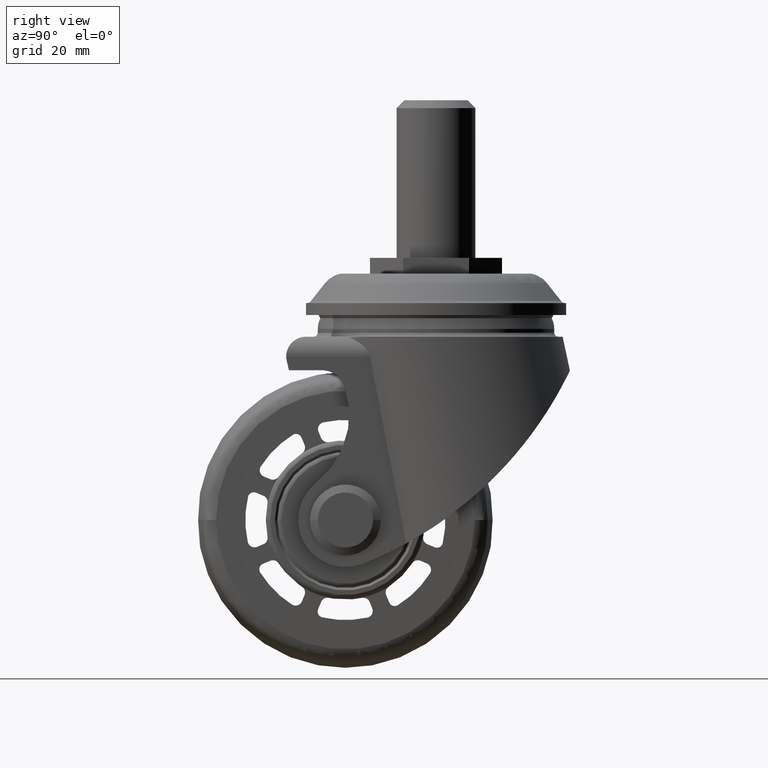
[diagram: clean part render]
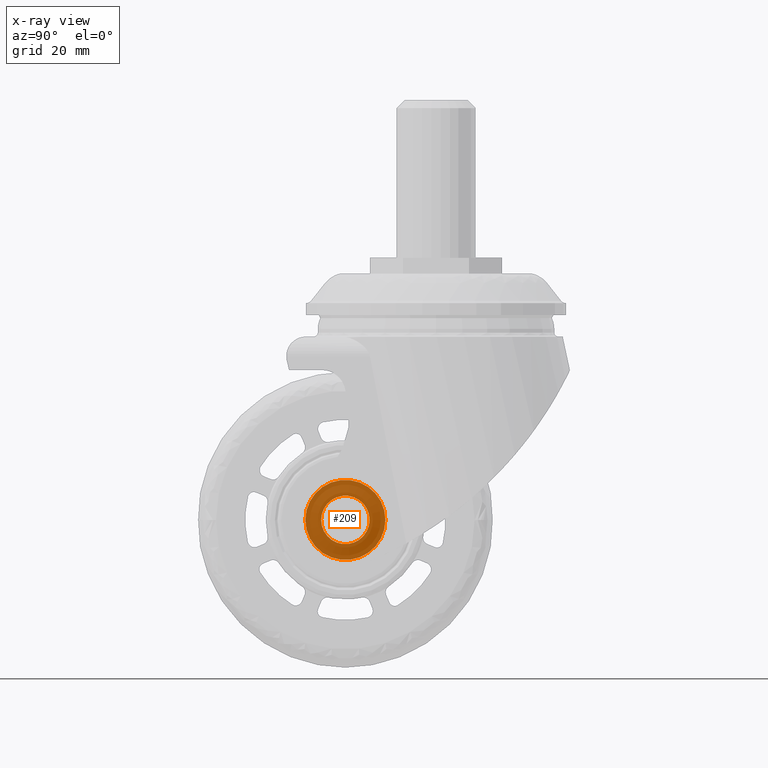
[diagram: x-ray — body ghosted, one internal face saturated and labeled with its STEP entity id]
A machine part, right view, then the same camera in x-ray: the body is ghosted and one INTERNAL B-rep face — a face not visible from any outside direction — is saturated and labeled: STEP entity #209.
In plain terms, the highlighted planar face has unit normal (-1, 0, 0).
Its self-contained STEP definition (entity closure, byte-faithful):
#209=ADVANCED_FACE('',(#1302,#1303),#1301,.T.);
#1301=PLANE('',#3249);
#1302=FACE_OUTER_BOUND('',#3250,.T.);
#1303=FACE_BOUND('',#3251,.T.);
#3246=CARTESIAN_POINT('',(-2.25000000000E+01,-2.11043736363E+01,-1.32000004500E+01));
#3247=DIRECTION('',(-1.00000000000E+00,0.00000000000E+00,0.00000000000E+00));
#3248=DIRECTION('',(0.00000000000E+00,0.00000000000E+00,1.00000000000E+00));
#3249=AXIS2_PLACEMENT_3D('',#3246,#3247,#3248);
#3250=EDGE_LOOP('',(#4624,#4625));
#3251=EDGE_LOOP('',(#4626,#4627));
#4624=ORIENTED_EDGE('',*,*,#5463,.F.);
#4625=ORIENTED_EDGE('',*,*,#5464,.F.);
#4626=ORIENTED_EDGE('',*,*,#5465,.T.);
#4627=ORIENTED_EDGE('',*,*,#5466,.T.);
#5463=EDGE_CURVE('',#7271,#7272,#7273,.T.);
#5464=EDGE_CURVE('',#7272,#7271,#7279,.T.);
#5465=EDGE_CURVE('',#7285,#7286,#7287,.T.);
#5466=EDGE_CURVE('',#7286,#7285,#7293,.T.);
#7271=VERTEX_POINT('',#10539);
#7272=VERTEX_POINT('',#10540);
#7273=CIRCLE('',#10544,1.01538465000E+01);
#7279=CIRCLE('',#10548,1.01538465000E+01);
#7285=VERTEX_POINT('',#10549);
#7286=VERTEX_POINT('',#10550);
#7287=CIRCLE('',#10554,6.15384615385E+00);
#7293=CIRCLE('',#10558,6.15384615385E+00);
#10539=CARTESIAN_POINT('',(-2.25000000000E+01,5.92118946467E-16,1.01538465000E+01));
#10540=CARTESIAN_POINT('',(-2.25000000000E+01,0.00000000000E+00,-1.01538465000E+01));
#10541=CARTESIAN_POINT('',(-2.25000000000E+01,0.00000000000E+00,0.00000000000E+00));
#10542=DIRECTION('',(1.00000000000E+00,0.00000000000E+00,0.00000000000E+00));
#10543=DIRECTION('',(0.00000000000E+00,-1.22460635382E-16,-1.00000000000E+00));
#10544=AXIS2_PLACEMENT_3D('',#10541,#10542,#10543);
#10545=CARTESIAN_POINT('',(-2.25000000000E+01,0.00000000000E+00,0.00000000000E+00));
#10546=DIRECTION('',(1.00000000000E+00,0.00000000000E+00,0.00000000000E+00));
#10547=DIRECTION('',(0.00000000000E+00,-1.22460635382E-16,-1.00000000000E+00));
#10548=AXIS2_PLACEMENT_3D('',#10545,#10546,#10547);
#10549=CARTESIAN_POINT('',(-2.25000000000E+01,0.00000000000E+00,-6.15384615385E+00));
#10550=CARTESIAN_POINT('',(-2.25000000000E+01,-2.96059473233E-16,6.15384615385E+00));
#10551=CARTESIAN_POINT('',(-2.25000000000E+01,0.00000000000E+00,0.00000000000E+00));
#10552=DIRECTION('',(1.00000000000E+00,0.00000000000E+00,0.00000000000E+00));
#10553=DIRECTION('',(0.00000000000E+00,-1.22460635382E-16,-1.00000000000E+00));
#10554=AXIS2_PLACEMENT_3D('',#10551,#10552,#10553);
#10555=CARTESIAN_POINT('',(-2.25000000000E+01,0.00000000000E+00,0.00000000000E+00));
#10556=DIRECTION('',(1.00000000000E+00,0.00000000000E+00,0.00000000000E+00));
#10557=DIRECTION('',(0.00000000000E+00,-1.22460635382E-16,-1.00000000000E+00));
#10558=AXIS2_PLACEMENT_3D('',#10555,#10556,#10557);